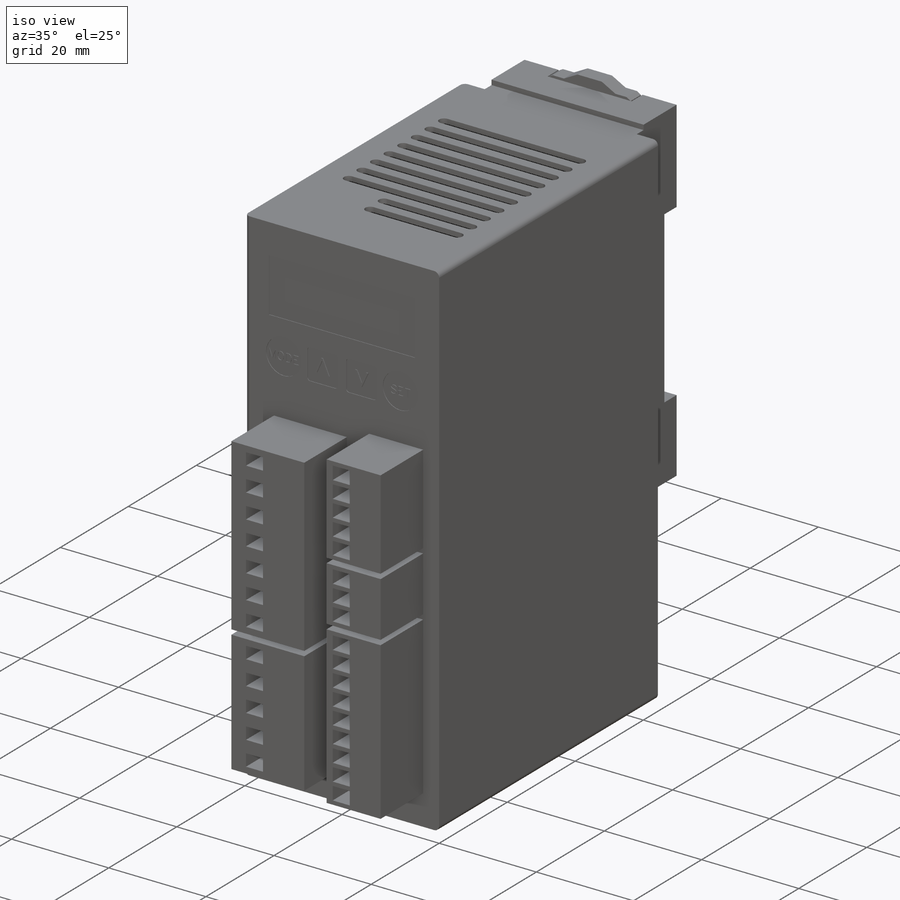
[diagram: iso view]
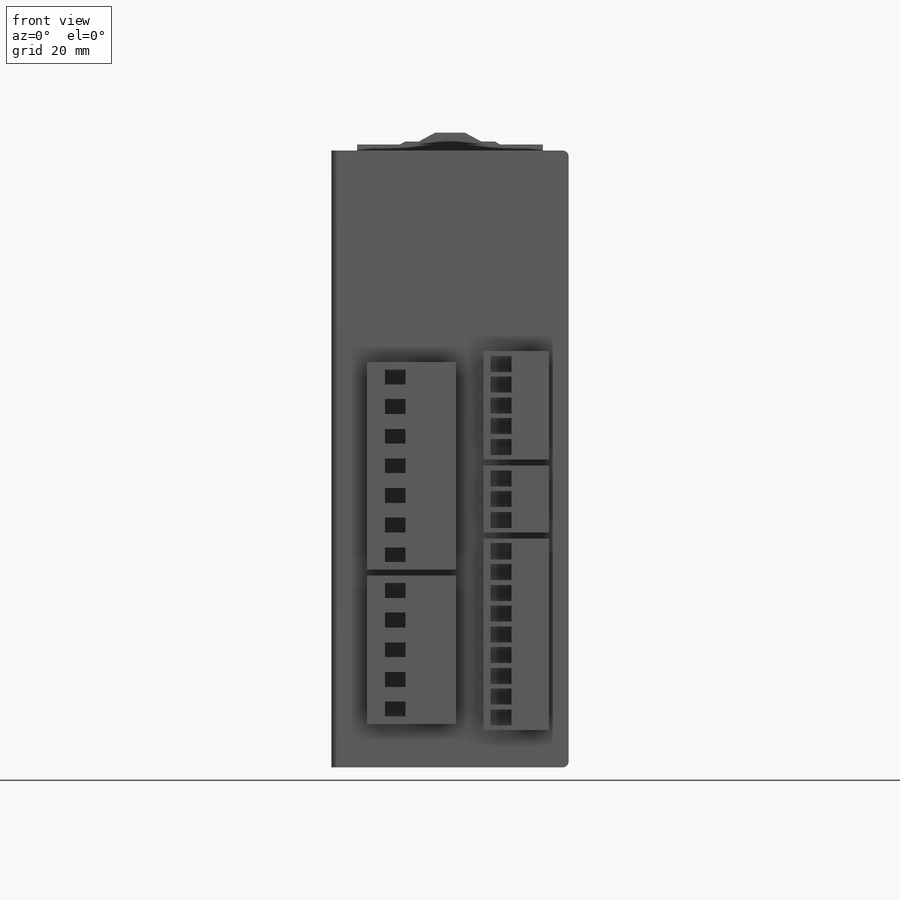
[diagram: front view]
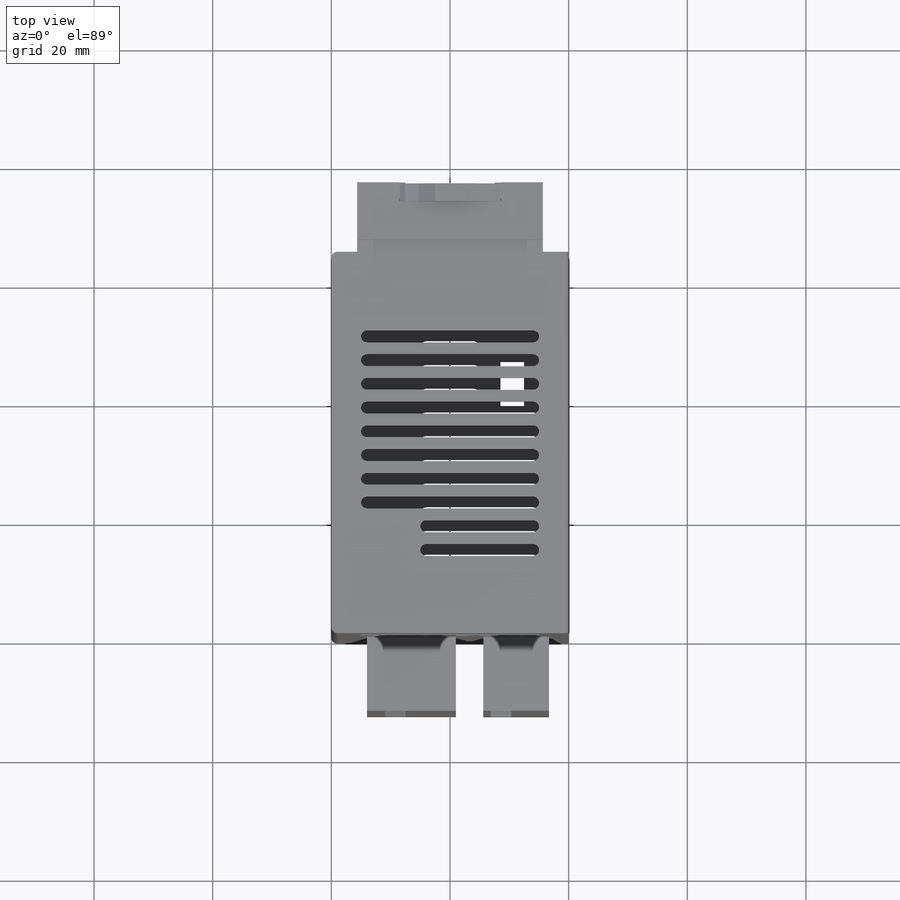
[diagram: top view]
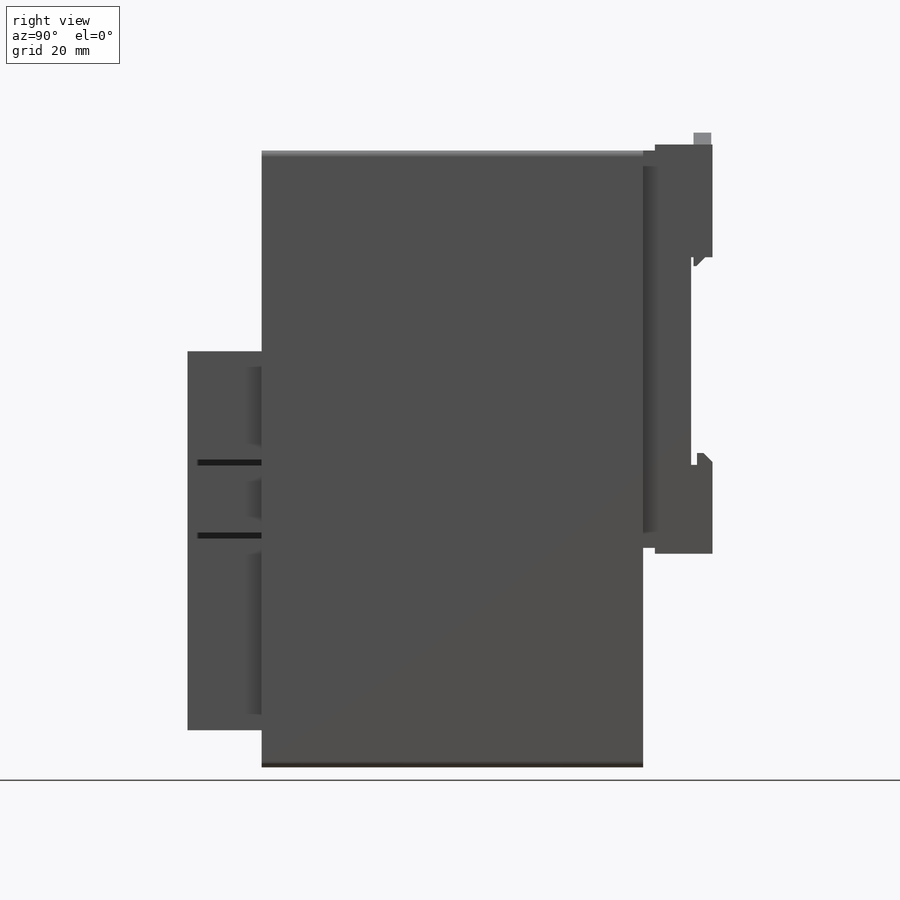
[diagram: right view]
SOLIDWORKS PART (.sldprt)
format: sldprt  version: not decoded by parser v0  size: 1,046,016 bytes
history: native  units: mm
features: sketch x18, extrude x10, cut_extrude x8, plane x3, chamfer x2, material x1, shell x1, fillet x1 + 3 further entries (+5 scaffold rows collapsed)
feature tree (52):
  scaffold x5  (default folders/planes/origin — collapsed)
  material  "재질 <지정안함>"
  "곡면 바디"
  "솔리드 바디"
  plane  "정면"
  plane  "윗면"
  plane  "우측면"
  "원점"
  sketch  "스케치1"  dims[D1=11.0mm D2=30.0mm D3=40.0mm D4=11.7mm D5=104.0mm]
  extrude  "보스-돌출1"  Depth=64.3mm
  shell  "쉘6"  Thickness=1mm
  sketch  "스케치6"  dims[D1=0.0mm]
  extrude  "보스-돌출4"  Depth=1mm
  sketch  "스케치2"
  cut_extrude  "컷-돌출1"  Depth=0.1mm
  sketch  "스케치3"
  extrude  "보스-돌출3"  Depth=12.5mm
  sketch  "스케치4"
  cut_extrude  "컷-돌출2"  Depth=0.1mm
  sketch  "스케치7"
  cut_extrude  "컷-돌출3"  Depth=1mm
  sketch  "스케치9"
  cut_extrude  "컷-돌출4"  Depth=1mm
  sketch  "스케치10"
  extrude  "보스-돌출5"  Depth=0.1mm
  sketch  "스케치11"
  extrude  "보스-돌출6"  Depth=0.1mm
  sketch  "스케치12"
  extrude  "보스-돌출7"  Depth=0.1mm
  sketch  "스케치13"
  extrude  "보스-돌출8"  Depth=0.1mm
  sketch  "스케치14"  dims[D1=15.0mm]
  extrude  "보스-돌출9"  Depth=31.3mm
  sketch  "스케치15"  dims[D1=27.0mm D2=8.5mm D3=2.0mm]
  cut_extrude  "컷-돌출5"  Depth=5.5mm
  sketch  "스케치16"  dims[D1=2.0mm D2=6.6mm D3=10.0mm]
  extrude  "보스-돌출10"  Depth=2.6mm
  chamfer  "모따기2"  Distance=1.5mm Angle=45deg
  sketch  "스케치17"  dims[D1=15.0mm]
  cut_extrude  "컷-돌출6"  Depth=3.2mm
  sketch  "스케치18"  dims[D1=4.3mm D2=17.3mm]
  cut_extrude  "컷-돌출7"  [1 undecoded]
  sketch  "스케치19"  dims[D1=1.5mm D2=0.2mm D3=0.2mm D4=0.2mm D5=0.2mm D6=0.2mm D7=0.2mm]
  extrude  "보스-돌출14"  Depth=3mm
  chamfer  "모따기3"  Distance=2.5mm Angle=45deg
  fillet  "필렛1"  Radius=1mm
  sketch  "스케치20"  dims[c1.D1=3.0mm c1.D2=1.5mm c1.D3=1.5mm c2.D2=12.0mm c2.D3=30.0mm]
  cut_extrude  "컷-돌출8"  [1 undecoded]
decode coverage: 29 of 40 modeling features carry decoded parameters; 3 rows unclassified (native names shown)
note: 2 parameter values undecoded
note: suppression state not decoded; provenance and decode notes live in map.json
